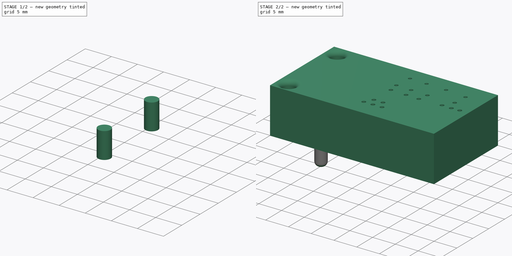
[diagram: build sequence overview — one tinted view per stage of 2, left to right]
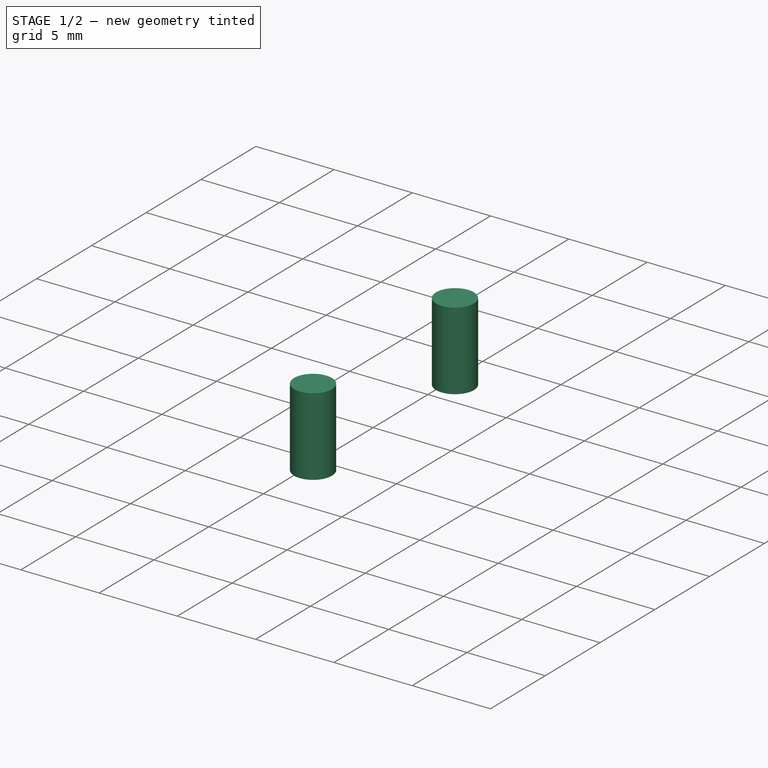
[diagram: stage 1 of 2 — iso view after this stage's code; geometry added in this stage tinted green]
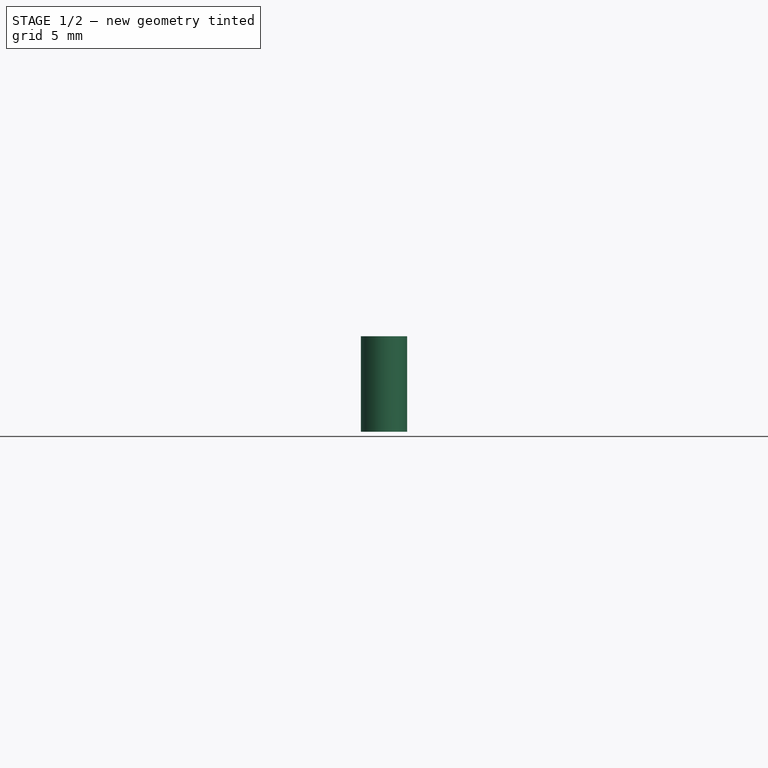
[diagram: stage 1 of 2 — front view after this stage's code; geometry added in this stage tinted green]
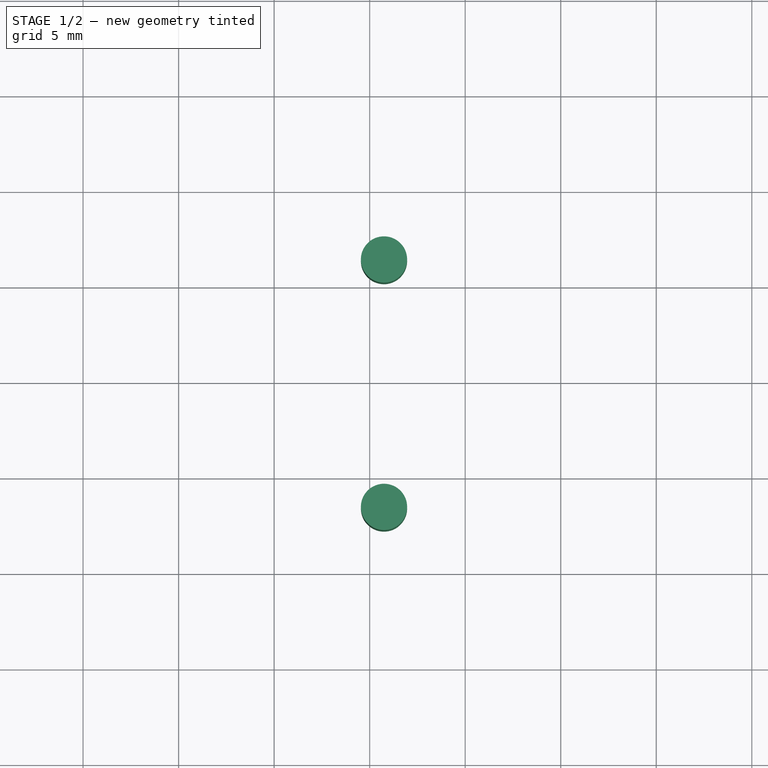
[diagram: stage 1 of 2 — top view after this stage's code; geometry added in this stage tinted green]
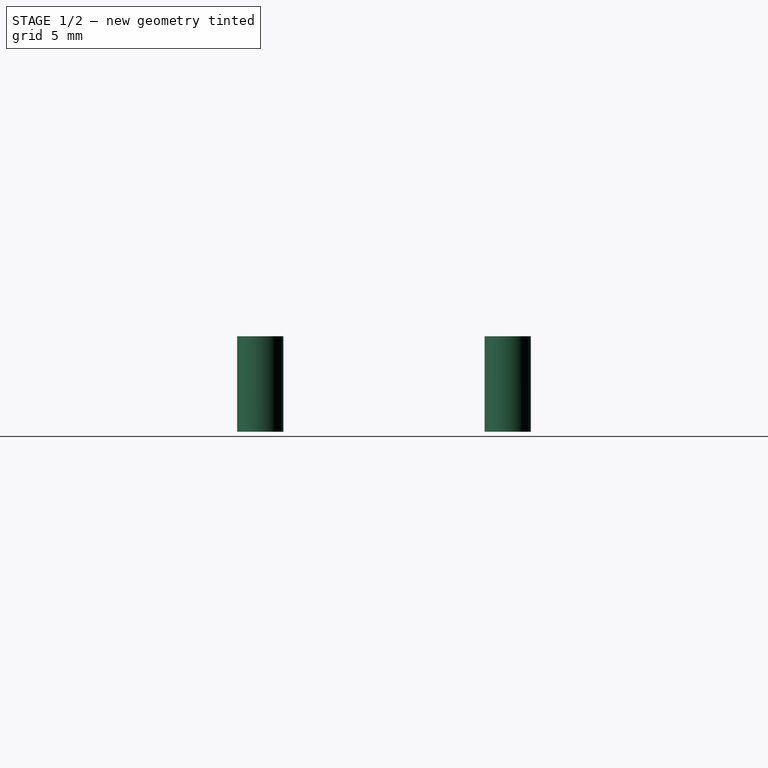
[diagram: stage 1 of 2 — right view after this stage's code; geometry added in this stage tinted green]
FCSTD DOCUMENT  (FreeCAD 0.20R29410 (Git))
Label: servoPCBProgrammer
License: All rights reserved
LicenseURL: http://en.wikipedia.org/wiki/All_rights_reserved
objects: Sketcher::SketchObject×2, Part::Extrusion×2, App::Part×1, Part::Fuse×1, Part::Fillet×1
note: 6 computed .brp shape members not serialized (recipe doc carries the construction recipe); baked Part::Feature solids carry a one-line shape summary decoded from their .brp

FEATURE [Sketcher::SketchObject] Sketch
  FullyConstrained = true
  sketch-geometry (30):
    g0: LineSegment StartX=-18 StartY=10.05 StartZ=0 EndX=18 EndY=10.05 EndZ=0
    g1: LineSegment StartX=18 StartY=10.05 StartZ=0 EndX=18 EndY=-10.05 EndZ=0
    g2: LineSegment StartX=18 StartY=-10.05 StartZ=0 EndX=-18 EndY=-10.05 EndZ=0
    g3: LineSegment StartX=-18 StartY=-10.05 StartZ=0 EndX=-18 EndY=10.05 EndZ=0
    g4: Circle CenterX=-0.15 CenterY=-6.12205 CenterZ=0 NormalX=0 NormalY=0 NormalZ=1 AngleXU=0 Radius=0.425
    g5: Circle CenterX=0.85 CenterY=-4.39 CenterZ=0 NormalX=0 NormalY=0 NormalZ=1 AngleXU=0 Radius=0.425
    g6: Circle CenterX=1.85 CenterY=-6.12205 CenterZ=0 NormalX=0 NormalY=0 NormalZ=1 AngleXU=0 Radius=0.425
    g7: Circle CenterX=2.85 CenterY=-4.39 CenterZ=0 NormalX=0 NormalY=0 NormalZ=1 AngleXU=0 Radius=0.425
    g8: Circle CenterX=3.85 CenterY=-6.12205 CenterZ=0 NormalX=0 NormalY=0 NormalZ=1 AngleXU=0 Radius=0.425
    g9: LineSegment StartX=-0.15 StartY=-6.12205 StartZ=0 EndX=1.85 EndY=-6.12205 EndZ=0
    g10: LineSegment StartX=1.85 StartY=-6.12205 StartZ=0 EndX=3.85 EndY=-6.12205 EndZ=0
    g11: LineSegment StartX=2.85 StartY=-4.39 StartZ=0 EndX=0.85 EndY=-4.39 EndZ=0
    g12: LineSegment StartX=0.85 StartY=-4.39 StartZ=0 EndX=1.85 EndY=-6.12205 EndZ=0
    g13: LineSegment StartX=2.85 StartY=-4.39 StartZ=0 EndX=1.85 EndY=-6.12205 EndZ=0
    g14: Circle CenterX=0.984052 CenterY=6.75885 CenterZ=0 NormalX=0 NormalY=0 NormalZ=1 AngleXU=0 Radius=0.37
    g15: Circle CenterX=4.71661 CenterY=6.62555 CenterZ=0 NormalX=0 NormalY=0 NormalZ=1 AngleXU=0 Radius=0.375
    g16: Circle CenterX=9.09347 CenterY=6.49224 CenterZ=0 NormalX=0 NormalY=0 NormalZ=1 AngleXU=0 Radius=0.38
    g17: Circle CenterX=13.7034 CenterY=6.00029 CenterZ=0 NormalX=0 NormalY=0 NormalZ=1 AngleXU=0 Radius=0.385
    g18: Circle CenterX=0.618896 CenterY=2.99222 CenterZ=0 NormalX=0 NormalY=0 NormalZ=1 AngleXU=0 Radius=0.39
    g19: Circle CenterX=3.96652 CenterY=2.85964 CenterZ=0 NormalX=0 NormalY=0 NormalZ=1 AngleXU=0 Radius=0.395
    g20: Circle CenterX=7.64559 CenterY=2.69392 CenterZ=0 NormalX=0 NormalY=0 NormalZ=1 AngleXU=0 Radius=0.4
    g21: Circle CenterX=13.4807 CenterY=2.92975 CenterZ=0 NormalX=0 NormalY=0 NormalZ=1 AngleXU=0 Radius=0.405
    g22: Circle CenterX=-15.5894 CenterY=7.64754 CenterZ=0 NormalX=0 NormalY=0 NormalZ=1 AngleXU=0 Radius=1.40727
    g23: Circle CenterX=-15.5894 CenterY=-7.64754 CenterZ=0 NormalX=0 NormalY=0 NormalZ=1 AngleXU=0 Radius=1.40727
    g24: Circle CenterX=0.947416 CenterY=0.812362 CenterZ=0 NormalX=0 NormalY=0 NormalZ=1 AngleXU=0 Radius=0.41
    g25: Circle CenterX=4.38551 CenterY=0.647773 CenterZ=0 NormalX=0 NormalY=0 NormalZ=1 AngleXU=0 Radius=0.415
    g26: Circle CenterX=7.25669 CenterY=0.556334 CenterZ=0 NormalX=0 NormalY=0 NormalZ=1 AngleXU=0 Radius=0.42
    g27: Circle CenterX=12.231 CenterY=0.739211 CenterZ=0 NormalX=0 NormalY=0 NormalZ=1 AngleXU=0 Radius=0.425
    g28: Circle CenterX=16.108 CenterY=0.757499 CenterZ=0 NormalX=0 NormalY=0 NormalZ=1 AngleXU=0 Radius=0.435
    g29: Circle CenterX=14.3158 CenterY=0.684348 CenterZ=0 NormalX=0 NormalY=0 NormalZ=1 AngleXU=0 Radius=0.43
  constraints (67):
    c: Coincident(g0,g1)
    c: Coincident(g1,g2)
    c: Coincident(g2,g3)
    c: Coincident(g3,g0)
    c: Horizontal(g0)
    c: Horizontal(g2)
    c: Vertical(g1)
    c: Vertical(g3)
    c: Coincident(g9,g4)
    c: Coincident(g9,g6)
    c: Coincident(g10,g6)
    c: Coincident(g10,g8)
    c: Coincident(g11,g7)
    c: Coincident(g11,g5)
    c: Horizontal(g9)
    c: Equal(g8,g7)
    c: Equal(g7,g6)
    c: Equal(g6,g5)
    c: Equal(g5,g4)
    c: Horizontal(g10)
    c: Horizontal(g11)
    c: Equal(g10,g9)
    c: DistanceX(g0,g0) = 36
    c: DistanceY(g3,g3) = 20.1
    c: DistanceX(g9,g9) = 2
    c: Equal(g11,g9)
    c: Coincident(g12,g5)
    c: Coincident(g12,g6)
    c: Coincident(g13,g7)
    c: Coincident(g13,g6)
    c: Equal(g12,g13)
    c: Equal(g13,g11)
    c: Symmetric(g2,g0,g-1)
    c: Diameter(g8) = 0.85
    c: DistanceX(g7,g1) = 15.15
    c: Diameter(g14) = 0.74
    c: Diameter(g15) = 0.75
    c: Diameter(g16) = 0.76
    c: Diameter(g17) = 0.77
    c: Diameter(g18) = 0.78
    c: Diameter(g19) = 0.79
    c: Diameter(g20) = 0.8
    c: Diameter(g21) = 0.81
    c: Block(g14)
    c: Block(g15)
    c: Block(g16)
    c: Block(g17)
    c: Block(g21)
    c: Block(g20)
    c: Block(g19)
    c: Block(g18)
    c: DistanceY(g1,g7) = 5.66
    c: Equal(g23,g22)
    c: Symmetric(g22,g23,g-1)
    c: Block(g22)
    c: Diameter(g24) = 0.82
    c: Diameter(g25) = 0.83
    c: Diameter(g26) = 0.84
    c: Diameter(g27) = 0.85
    c: Diameter(g29) = 0.86
    c: Diameter(g28) = 0.87
    c: Block(g24)
    c: Block(g25)
    c: Block(g26)
    c: Block(g27)
    c: Block(g29)
    c: Block(g28)
FEATURE [App::Part] Part
  Group = -> [Sketch]
  Origin = -> Origin
FEATURE [Part::Extrusion] Extrude
  Base = -> Sketch
  Dir = (0,0,1)
  DirMode = 2
  FaceMakerClass = Part::FaceMakerBullseye
  LengthFwd = 10
  LengthRev = 0
  Solid = true
  Symmetric = false
FEATURE [Sketcher::SketchObject] Sketch002
  FullyConstrained = true
  MapMode = 5
  Placement = pos=(0,0,0) rot=(1,0,0;3.14159rad)
  Support = -> [Extrude]
  sketch-geometry (16):
    g0: LineSegment StartX=-18 StartY=10.05 StartZ=0 EndX=18 EndY=10.05 EndZ=0
    g1: LineSegment StartX=18 StartY=10.05 StartZ=0 EndX=18 EndY=-10.05 EndZ=0
    g2: LineSegment StartX=18 StartY=-10.05 StartZ=0 EndX=-18 EndY=-10.05 EndZ=0
    g3: LineSegment StartX=-18 StartY=-10.05 StartZ=0 EndX=-18 EndY=10.05 EndZ=0
    g4: Circle CenterX=-0.15 CenterY=-6.12205 CenterZ=0 NormalX=0 NormalY=0 NormalZ=1 AngleXU=0 Radius=0.345
    g5: Circle CenterX=0.85 CenterY=-4.39 CenterZ=0 NormalX=0 NormalY=0 NormalZ=1 AngleXU=0 Radius=0.345
    g6: Circle CenterX=1.85 CenterY=-6.12205 CenterZ=0 NormalX=0 NormalY=0 NormalZ=1 AngleXU=0 Radius=0.345
    g7: Circle CenterX=2.85 CenterY=-4.39 CenterZ=0 NormalX=0 NormalY=0 NormalZ=1 AngleXU=0 Radius=0.345
    g8: Circle CenterX=3.85 CenterY=-6.12205 CenterZ=0 NormalX=0 NormalY=0 NormalZ=1 AngleXU=0 Radius=0.345
    g9: LineSegment StartX=-0.15 StartY=-6.12205 StartZ=0 EndX=1.85 EndY=-6.12205 EndZ=0
    g10: LineSegment StartX=1.85 StartY=-6.12205 StartZ=0 EndX=3.85 EndY=-6.12205 EndZ=0
    g11: LineSegment StartX=2.85 StartY=-4.39 StartZ=0 EndX=0.85 EndY=-4.39 EndZ=0
    g12: LineSegment StartX=0.85 StartY=-4.39 StartZ=0 EndX=1.85 EndY=-6.12205 EndZ=0
    g13: LineSegment StartX=2.85 StartY=-4.39 StartZ=0 EndX=1.85 EndY=-6.12205 EndZ=0
    g14: Circle CenterX=-9.25 CenterY=6.55 CenterZ=0 NormalX=0 NormalY=0 NormalZ=1 AngleXU=0 Radius=1.21
    g15: Circle CenterX=-9.25 CenterY=-6.4 CenterZ=0 NormalX=0 NormalY=0 NormalZ=1 AngleXU=0 Radius=1.21
  constraints (42):
    c: Coincident(g0,g1)
    c: Coincident(g1,g2)
    c: Coincident(g2,g3)
    c: Coincident(g3,g0)
    c: Horizontal(g0)
    c: Horizontal(g2)
    c: Vertical(g1)
    c: Vertical(g3)
    c: Coincident(g9,g4)
    c: Coincident(g9,g6)
    c: Coincident(g10,g6)
    c: Coincident(g10,g8)
    c: Coincident(g11,g7)
    c: Coincident(g11,g5)
    c: Horizontal(g9)
    c: Equal(g8,g7)
    c: Equal(g7,g6)
    c: Equal(g6,g5)
    c: Equal(g5,g4)
    c: Horizontal(g10)
    c: Horizontal(g11)
    c: Equal(g10,g9)
    c: DistanceX(g0,g0) = 36
    c: DistanceY(g3,g3) = 20.1
    c: DistanceX(g9,g9) = 2
    c: Equal(g11,g9)
    c: Coincident(g12,g5)
    c: Coincident(g12,g6)
    c: Coincident(g13,g7)
    c: Coincident(g13,g6)
    c: Equal(g12,g13)
    c: Equal(g13,g11)
    c: Symmetric(g2,g0,g-1)
    c: Diameter(g8) = 0.69
    c: DistanceX(g7,g1) = 15.15
    c: DistanceY(g1,g7) = 5.66
    c: DistanceY(g15,g14) = 12.95
    c: Vertical(g14,g15)
    c: Diameter(g14) = 2.42
    c: Equal(g14,g15)
    c: DistanceY(g14,g0) = 3.5
    c: DistanceX(g15,g4) = 9.1
FEATURE [Part::Extrusion] Extrude001
  Base = -> Sketch002
  Dir = (0,0,-1)
  DirMode = 2
  FaceMakerClass = Part::FaceMakerBullseye
  LengthFwd = 5
  LengthRev = 0
  Solid = true
  Symmetric = false
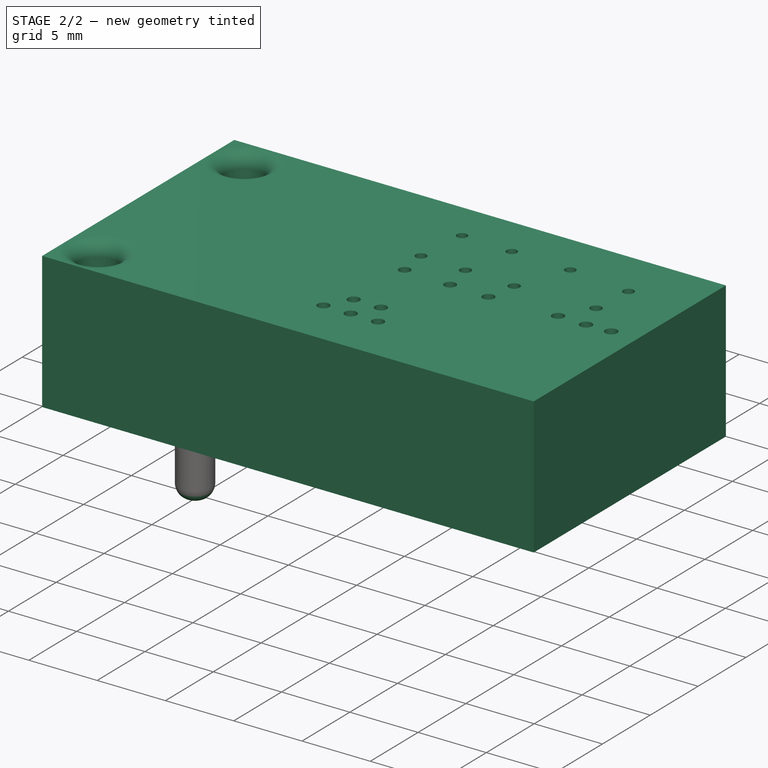
[diagram: stage 2 of 2 — iso view after this stage's code; geometry added in this stage tinted green]
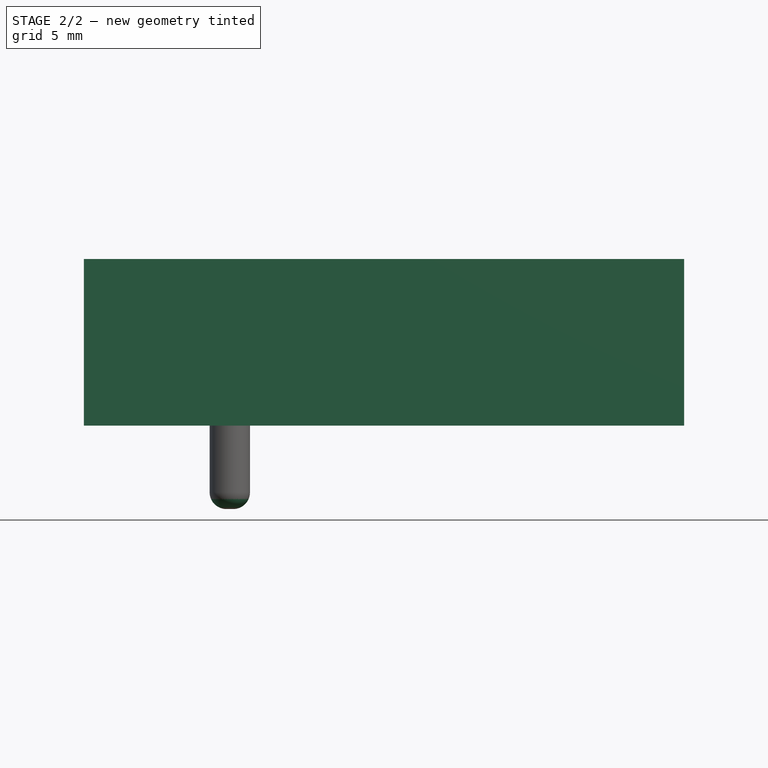
[diagram: stage 2 of 2 — front view after this stage's code; geometry added in this stage tinted green]
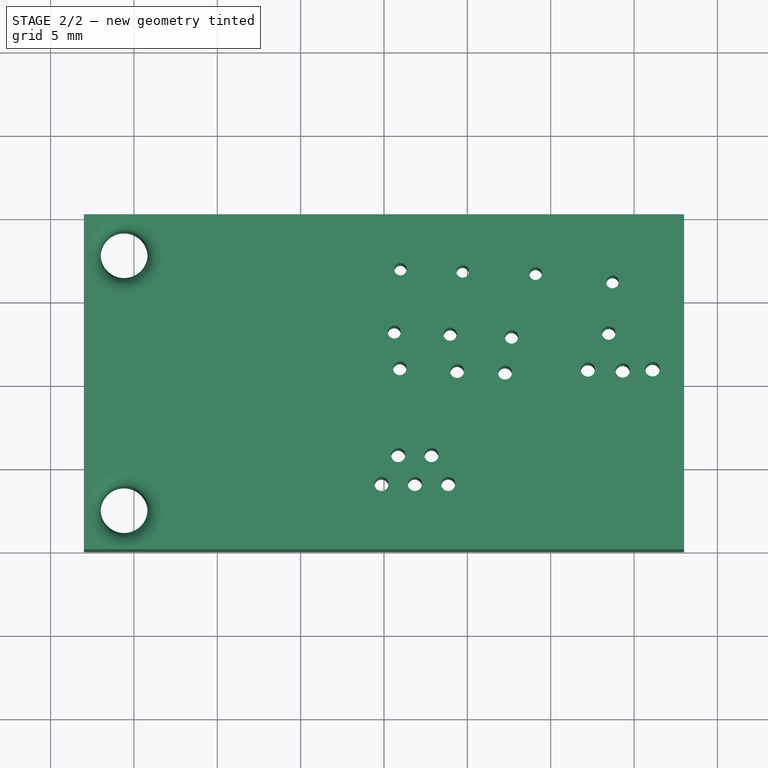
[diagram: stage 2 of 2 — top view after this stage's code; geometry added in this stage tinted green]
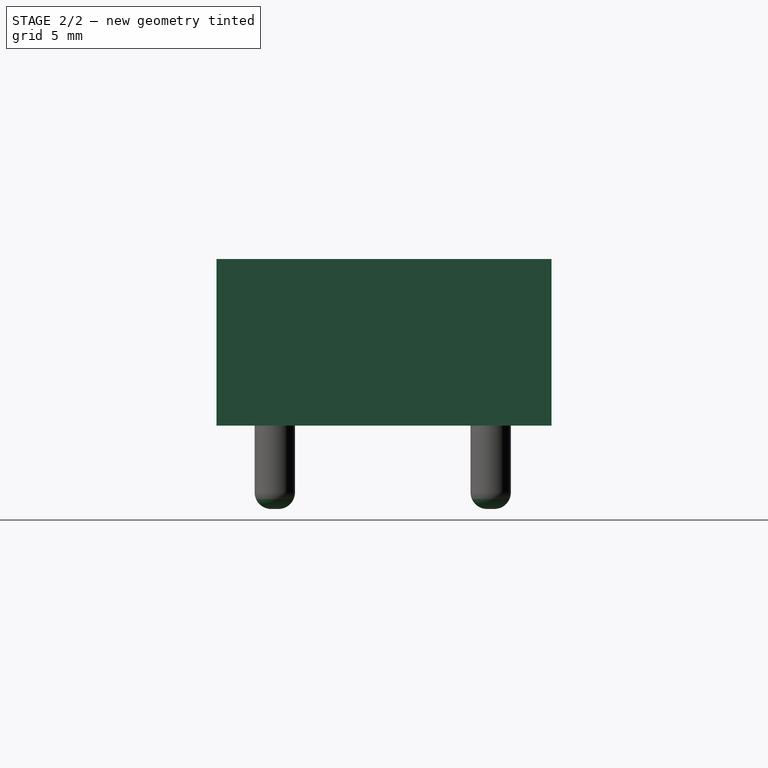
[diagram: stage 2 of 2 — right view after this stage's code; geometry added in this stage tinted green]
FEATURE [Part::Fuse] Fusion
  Base = -> Extrude
  Tool = -> Extrude001
FEATURE [Part::Fillet] Fillet
  Base = -> Fusion
  Edges = 6 edges r=1: [Edge12,Edge20,Edge36,Edge37,Edge59,Edge66]
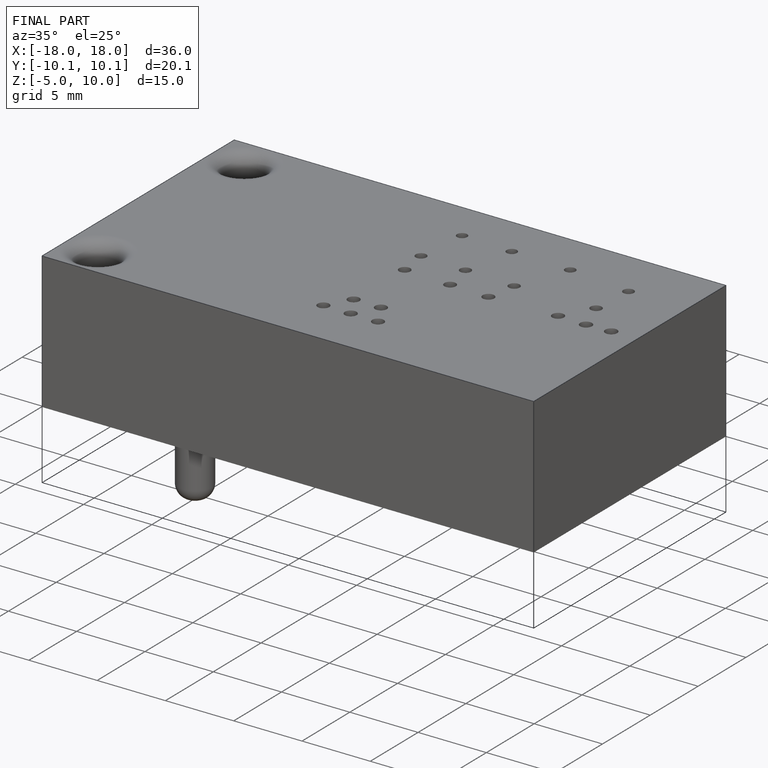
[diagram: finished part — iso view with bounding-box wireframe]
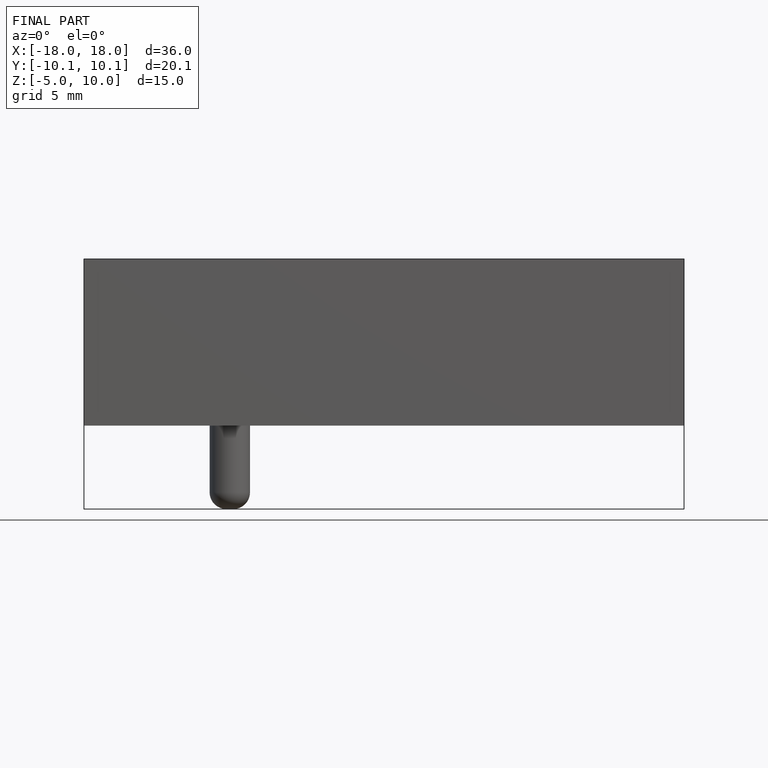
[diagram: finished part — front view with bounding-box wireframe]
